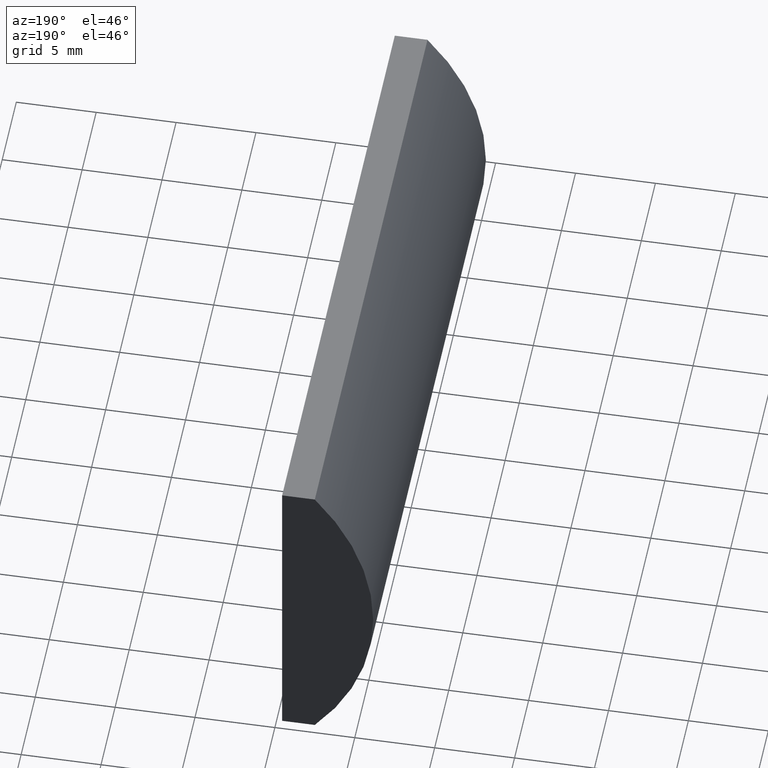
[diagram: clean part render]
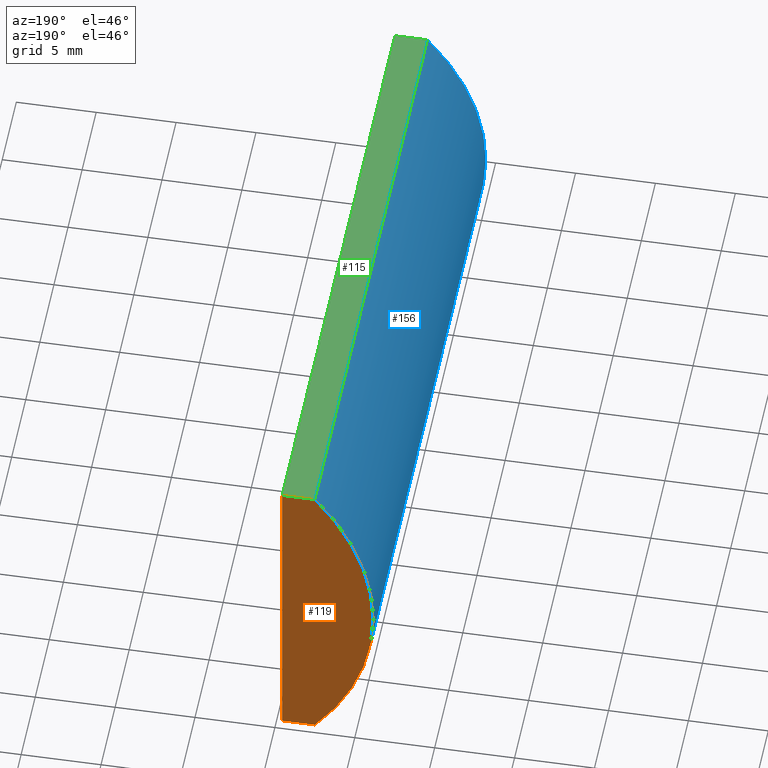
[diagram: same view with three faces highlighted in distinct colors, each labeled with its STEP entity id]
A machine part, auxiliary view with three faces highlighted in distinct colors.
Their STEP definitions:

[orange] entity #119 — the highlighted planar face has unit normal (0, 1, 0).
#4 = EDGE_LOOP ( 'NONE', ( #168, #137, #106, #161 ) ) ;
#7 = VERTEX_POINT ( 'NONE', #77 ) ;
#12 = AXIS2_PLACEMENT_3D ( 'NONE', #197, #97, #198 ) ;
#20 = EDGE_CURVE ( 'NONE', #117, #167, #108, .T. ) ;
#22 = CARTESIAN_POINT ( 'NONE',  ( -5.454795665148737700, 40.00000000000000000, -10.00000000000000000 ) ) ;
#29 = DIRECTION ( 'NONE',  ( 0.0000000000000000000, 1.000000000000000000, 0.0000000000000000000 ) ) ;
#39 = VECTOR ( 'NONE', #105, 1000.000000000000000 ) ;
#45 = CARTESIAN_POINT ( 'NONE',  ( -7.500600150716129700, 40.00000000000000000, 10.00000000000000000 ) ) ;
#49 = EDGE_CURVE ( 'NONE', #167, #7, #70, .T. ) ;
#51 = LINE ( 'NONE', #151, #183 ) ;
#65 = DIRECTION ( 'NONE',  ( 0.0000000000000000000, 0.0000000000000000000, 1.000000000000000000 ) ) ;
#70 = LINE ( 'NONE', #136, #39 ) ;
#77 = CARTESIAN_POINT ( 'NONE',  ( -7.500600150716129700, 40.00000000000000000, -10.00000000000000000 ) ) ;
#89 = CIRCLE ( 'NONE', #107, 15.51000000000000000 ) ;
#97 = DIRECTION ( 'NONE',  ( 0.0000000000000000000, 1.000000000000000000, 0.0000000000000000000 ) ) ;
#105 = DIRECTION ( 'NONE',  ( -1.000000000000000000, -0.0000000000000000000, -0.0000000000000000000 ) ) ;
#106 = ORIENTED_EDGE ( 'NONE', *, *, #20, .T. ) ;
#107 = AXIS2_PLACEMENT_3D ( 'NONE', #193, #29, #65 ) ;
#108 = LINE ( 'NONE', #22, #194 ) ;
#111 = EDGE_CURVE ( 'NONE', #7, #130, #89, .T. ) ;
#117 = VERTEX_POINT ( 'NONE', #175 ) ;
#119 = ADVANCED_FACE ( 'NONE', ( #162 ), #143, .T. ) ;
#121 = DIRECTION ( 'NONE',  ( -3.035766082959412400E-016, -0.0000000000000000000, -1.000000000000000000 ) ) ;
#130 = VERTEX_POINT ( 'NONE', #45 ) ;
#131 = EDGE_CURVE ( 'NONE', #130, #117, #51, .T. ) ;
#134 = DIRECTION ( 'NONE',  ( 1.000000000000000000, 0.0000000000000000000, 0.0000000000000000000 ) ) ;
#136 = CARTESIAN_POINT ( 'NONE',  ( -7.500600150716129700, 40.00000000000000000, -10.00000000000000000 ) ) ;
#137 = ORIENTED_EDGE ( 'NONE', *, *, #131, .T. ) ;
#143 = PLANE ( 'NONE',  #12 ) ;
#151 = CARTESIAN_POINT ( 'NONE',  ( -7.500600150716129700, 40.00000000000000000, 10.00000000000000000 ) ) ;
#159 = CARTESIAN_POINT ( 'NONE',  ( -5.454795665148737700, 40.00000000000000000, -10.00000000000000000 ) ) ;
#161 = ORIENTED_EDGE ( 'NONE', *, *, #49, .T. ) ;
#162 = FACE_OUTER_BOUND ( 'NONE', #4, .T. ) ;
#167 = VERTEX_POINT ( 'NONE', #159 ) ;
#168 = ORIENTED_EDGE ( 'NONE', *, *, #111, .T. ) ;
#175 = CARTESIAN_POINT ( 'NONE',  ( -5.454795665148731500, 40.00000000000000000, 10.00000000000000000 ) ) ;
#183 = VECTOR ( 'NONE', #134, 1000.000000000000000 ) ;
#193 = CARTESIAN_POINT ( 'NONE',  ( 4.355204334851265500, 40.00000000000000000, 4.286263797015675000E-017 ) ) ;
#194 = VECTOR ( 'NONE', #121, 1000.000000000000000 ) ;
#197 = CARTESIAN_POINT ( 'NONE',  ( 4.355204334851265500, 40.00000000000000000, 4.286263797015675000E-017 ) ) ;
#198 = DIRECTION ( 'NONE',  ( 0.0000000000000000000, -0.0000000000000000000, 1.000000000000000000 ) ) ;

[blue] entity #156 — the highlighted cylindrical surface (partial cylindrical patch) has radius 15.51 mm, axis along (-0, -1, -0).
#2 = DIRECTION ( 'NONE',  ( 0.0000000000000000000, 0.0000000000000000000, 1.000000000000000000 ) ) ;
#7 = VERTEX_POINT ( 'NONE', #77 ) ;
#18 = CARTESIAN_POINT ( 'NONE',  ( -7.500600150716129700, 40.00000000000000000, -10.00000000000000000 ) ) ;
#29 = DIRECTION ( 'NONE',  ( 0.0000000000000000000, 1.000000000000000000, 0.0000000000000000000 ) ) ;
#36 = ORIENTED_EDGE ( 'NONE', *, *, #85, .T. ) ;
#38 = AXIS2_PLACEMENT_3D ( 'NONE', #160, #153, #2 ) ;
#45 = CARTESIAN_POINT ( 'NONE',  ( -7.500600150716129700, 40.00000000000000000, 10.00000000000000000 ) ) ;
#46 = DIRECTION ( 'NONE',  ( -0.0000000000000000000, -1.000000000000000000, -0.0000000000000000000 ) ) ;
#50 = VERTEX_POINT ( 'NONE', #158 ) ;
#55 = AXIS2_PLACEMENT_3D ( 'NONE', #144, #181, #98 ) ;
#65 = DIRECTION ( 'NONE',  ( 0.0000000000000000000, 0.0000000000000000000, 1.000000000000000000 ) ) ;
#72 = EDGE_CURVE ( 'NONE', #7, #126, #182, .T. ) ;
#76 = FACE_OUTER_BOUND ( 'NONE', #86, .T. ) ;
#77 = CARTESIAN_POINT ( 'NONE',  ( -7.500600150716129700, 40.00000000000000000, -10.00000000000000000 ) ) ;
#80 = CARTESIAN_POINT ( 'NONE',  ( -7.500600150716129700, 0.0000000000000000000, -10.00000000000000000 ) ) ;
#85 = EDGE_CURVE ( 'NONE', #126, #50, #87, .T. ) ;
#86 = EDGE_LOOP ( 'NONE', ( #36, #157, #148, #142 ) ) ;
#87 = CIRCLE ( 'NONE', #38, 15.51000000000000000 ) ;
#89 = CIRCLE ( 'NONE', #107, 15.51000000000000000 ) ;
#94 = EDGE_CURVE ( 'NONE', #130, #50, #176, .T. ) ;
#98 = DIRECTION ( 'NONE',  ( 0.0000000000000000000, 0.0000000000000000000, -1.000000000000000000 ) ) ;
#102 = VECTOR ( 'NONE', #178, 1000.000000000000000 ) ;
#107 = AXIS2_PLACEMENT_3D ( 'NONE', #193, #29, #65 ) ;
#111 = EDGE_CURVE ( 'NONE', #7, #130, #89, .T. ) ;
#123 = CYLINDRICAL_SURFACE ( 'NONE', #55, 15.51000000000000000 ) ;
#126 = VERTEX_POINT ( 'NONE', #80 ) ;
#130 = VERTEX_POINT ( 'NONE', #45 ) ;
#142 = ORIENTED_EDGE ( 'NONE', *, *, #72, .T. ) ;
#144 = CARTESIAN_POINT ( 'NONE',  ( 4.355204334851265500, 40.00000000000000000, 4.286263797015675000E-017 ) ) ;
#148 = ORIENTED_EDGE ( 'NONE', *, *, #111, .F. ) ;
#153 = DIRECTION ( 'NONE',  ( 0.0000000000000000000, 1.000000000000000000, 0.0000000000000000000 ) ) ;
#156 = ADVANCED_FACE ( 'NONE', ( #76 ), #123, .T. ) ;
#157 = ORIENTED_EDGE ( 'NONE', *, *, #94, .F. ) ;
#158 = CARTESIAN_POINT ( 'NONE',  ( -7.500600150716129700, 0.0000000000000000000, 10.00000000000000000 ) ) ;
#160 = CARTESIAN_POINT ( 'NONE',  ( 4.355204334851265500, 0.0000000000000000000, 4.286263797015675000E-017 ) ) ;
#176 = LINE ( 'NONE', #184, #200 ) ;
#178 = DIRECTION ( 'NONE',  ( -0.0000000000000000000, -1.000000000000000000, -0.0000000000000000000 ) ) ;
#181 = DIRECTION ( 'NONE',  ( -0.0000000000000000000, -1.000000000000000000, -0.0000000000000000000 ) ) ;
#182 = LINE ( 'NONE', #18, #102 ) ;
#184 = CARTESIAN_POINT ( 'NONE',  ( -7.500600150716129700, 40.00000000000000000, 10.00000000000000000 ) ) ;
#193 = CARTESIAN_POINT ( 'NONE',  ( 4.355204334851265500, 40.00000000000000000, 4.286263797015675000E-017 ) ) ;
#200 = VECTOR ( 'NONE', #46, 1000.000000000000000 ) ;

[green] entity #115 — the highlighted planar face has unit normal (0, 0, -1).
#3 = CARTESIAN_POINT ( 'NONE',  ( -5.454795665148731500, 40.00000000000000000, 10.00000000000000000 ) ) ;
#15 = ORIENTED_EDGE ( 'NONE', *, *, #118, .T. ) ;
#21 = PLANE ( 'NONE',  #135 ) ;
#45 = CARTESIAN_POINT ( 'NONE',  ( -7.500600150716129700, 40.00000000000000000, 10.00000000000000000 ) ) ;
#46 = DIRECTION ( 'NONE',  ( -0.0000000000000000000, -1.000000000000000000, -0.0000000000000000000 ) ) ;
#50 = VERTEX_POINT ( 'NONE', #158 ) ;
#51 = LINE ( 'NONE', #151, #183 ) ;
#58 = CARTESIAN_POINT ( 'NONE',  ( -7.500600150716129700, 40.00000000000000000, 10.00000000000000000 ) ) ;
#69 = ORIENTED_EDGE ( 'NONE', *, *, #104, .F. ) ;
#92 = ORIENTED_EDGE ( 'NONE', *, *, #131, .F. ) ;
#94 = EDGE_CURVE ( 'NONE', #130, #50, #176, .T. ) ;
#104 = EDGE_CURVE ( 'NONE', #117, #169, #191, .T. ) ;
#114 = VECTOR ( 'NONE', #165, 1000.000000000000000 ) ;
#115 = ADVANCED_FACE ( 'NONE', ( #132 ), #21, .F. ) ;
#116 = DIRECTION ( 'NONE',  ( -1.000000000000000000, 0.0000000000000000000, -0.0000000000000000000 ) ) ;
#117 = VERTEX_POINT ( 'NONE', #175 ) ;
#118 = EDGE_CURVE ( 'NONE', #50, #169, #196, .T. ) ;
#120 = EDGE_LOOP ( 'NONE', ( #15, #69, #92, #203 ) ) ;
#128 = VECTOR ( 'NONE', #141, 1000.000000000000000 ) ;
#130 = VERTEX_POINT ( 'NONE', #45 ) ;
#131 = EDGE_CURVE ( 'NONE', #130, #117, #51, .T. ) ;
#132 = FACE_OUTER_BOUND ( 'NONE', #120, .T. ) ;
#134 = DIRECTION ( 'NONE',  ( 1.000000000000000000, 0.0000000000000000000, 0.0000000000000000000 ) ) ;
#135 = AXIS2_PLACEMENT_3D ( 'NONE', #58, #173, #116 ) ;
#141 = DIRECTION ( 'NONE',  ( 1.000000000000000000, 0.0000000000000000000, 0.0000000000000000000 ) ) ;
#151 = CARTESIAN_POINT ( 'NONE',  ( -7.500600150716129700, 40.00000000000000000, 10.00000000000000000 ) ) ;
#158 = CARTESIAN_POINT ( 'NONE',  ( -7.500600150716129700, 0.0000000000000000000, 10.00000000000000000 ) ) ;
#165 = DIRECTION ( 'NONE',  ( -0.0000000000000000000, -1.000000000000000000, -0.0000000000000000000 ) ) ;
#169 = VERTEX_POINT ( 'NONE', #174 ) ;
#173 = DIRECTION ( 'NONE',  ( 0.0000000000000000000, 0.0000000000000000000, -1.000000000000000000 ) ) ;
#174 = CARTESIAN_POINT ( 'NONE',  ( -5.454795665148731500, 0.0000000000000000000, 10.00000000000000000 ) ) ;
#175 = CARTESIAN_POINT ( 'NONE',  ( -5.454795665148731500, 40.00000000000000000, 10.00000000000000000 ) ) ;
#176 = LINE ( 'NONE', #184, #200 ) ;
#183 = VECTOR ( 'NONE', #134, 1000.000000000000000 ) ;
#184 = CARTESIAN_POINT ( 'NONE',  ( -7.500600150716129700, 40.00000000000000000, 10.00000000000000000 ) ) ;
#188 = CARTESIAN_POINT ( 'NONE',  ( -7.500600150716129700, 0.0000000000000000000, 10.00000000000000000 ) ) ;
#191 = LINE ( 'NONE', #3, #114 ) ;
#196 = LINE ( 'NONE', #188, #128 ) ;
#200 = VECTOR ( 'NONE', #46, 1000.000000000000000 ) ;
#203 = ORIENTED_EDGE ( 'NONE', *, *, #94, .T. ) ;